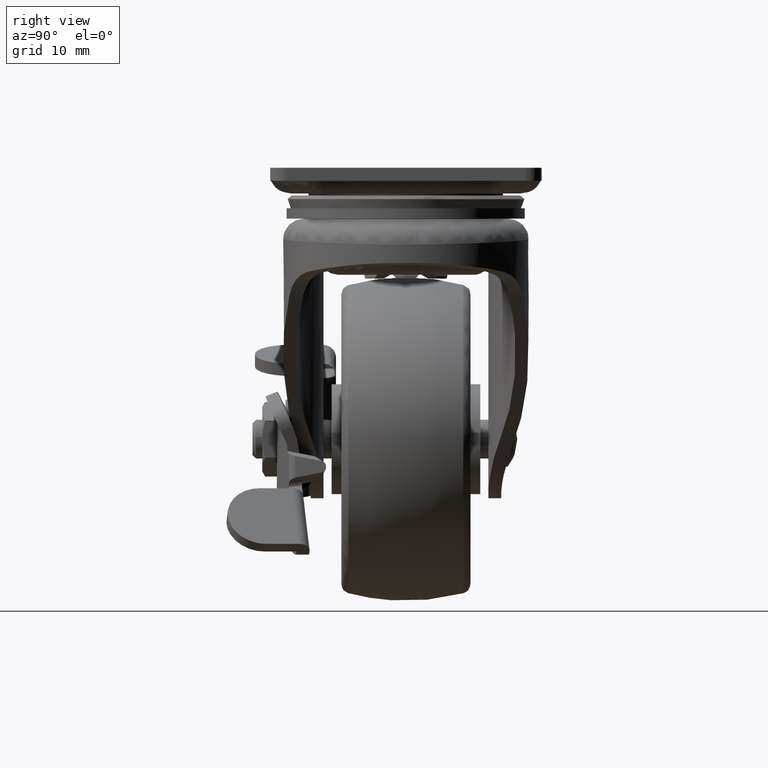
[diagram: clean part render]
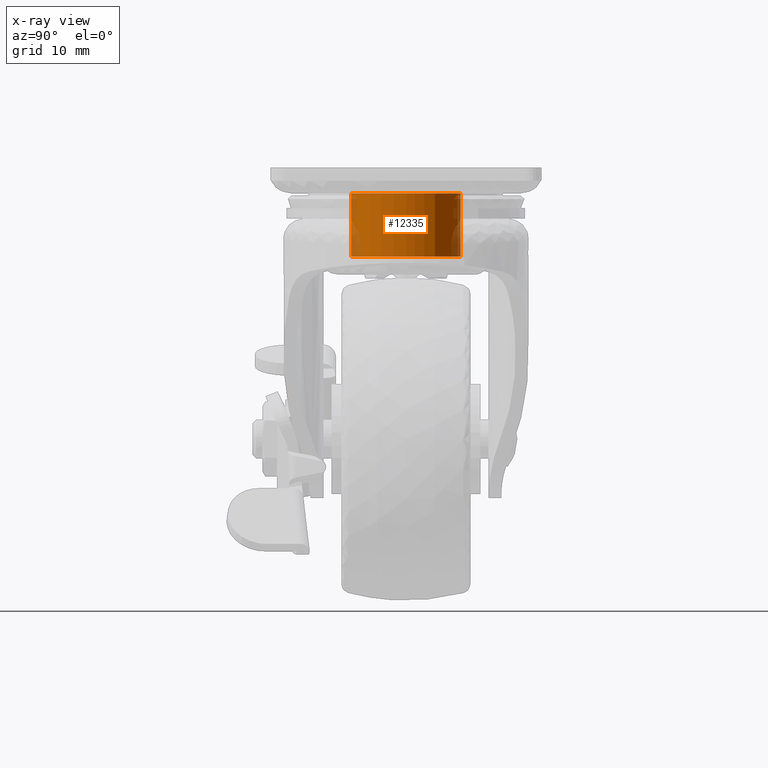
[diagram: x-ray — body ghosted, one internal face saturated and labeled with its STEP entity id]
A machine part, right view, then the same camera in x-ray: the body is ghosted and one INTERNAL B-rep face — a face not visible from any outside direction — is saturated and labeled: STEP entity #12335.
In plain terms, the highlighted face is a freeform B-spline surface patch.
Its self-contained STEP definition (entity closure, byte-faithful):
#12233=CARTESIAN_POINT('',(-1.003342693577227,8.441015912263719,-3.738265700000000));
#12234=CARTESIAN_POINT('',(-0.761764444673954,8.469731149088721,-3.738265699999999));
#12235=CARTESIAN_POINT('',(-0.518939325306601,8.484582969627583,-3.738265699999999));
#12236=CARTESIAN_POINT('',(7.965643644320975,9.003522294934184,-3.738265700000000));
#12237=CARTESIAN_POINT('',(8.484582969627576,0.518939325306608,-3.738265699999999));
#12238=CARTESIAN_POINT('',(9.003522294934177,-7.965643644320967,-3.738265700000000));
#12239=CARTESIAN_POINT('',(0.518939325306601,-8.484582969627569,-3.738265699999999));
#12240=CARTESIAN_POINT('',(-1.003342693577227,8.441015912263719,-14.041211357500003));
#12241=CARTESIAN_POINT('',(-0.761764444673954,8.469731149088721,-14.041211357500007));
#12242=CARTESIAN_POINT('',(-0.518939325306601,8.484582969627583,-14.041211357500000));
#12243=CARTESIAN_POINT('',(7.965643644320975,9.003522294934184,-14.041211357500003));
#12244=CARTESIAN_POINT('',(8.484582969627576,0.518939325306608,-14.041211357500000));
#12245=CARTESIAN_POINT('',(9.003522294934177,-7.965643644320967,-14.041211357500003));
#12246=CARTESIAN_POINT('',(0.518939325306601,-8.484582969627569,-14.041211357500000));
#12254=(BOUNDED_SURFACE()B_SPLINE_SURFACE(2,1,((#12233,#12240),(#12234,#12241),(#12235,#12242),(#12236,#12243),(#12237,#12244),(#12238,#12245),(#12239,#12246)),.UNSPECIFIED.,.F.,.F.,.U.)B_SPLINE_SURFACE_WITH_KNOTS((3,2,2,3),(2,2),(0.0,0.563359472913861,14.647346295760370,28.731333118606880),(0.0,10.302945657500009),.UNSPECIFIED.)GEOMETRIC_REPRESENTATION_ITEM()RATIONAL_B_SPLINE_SURFACE(((0.977505800795127,0.977505800795127),(0.988284271247462,0.988284271247462),(1.0,1.0),(0.707106781186548,0.707106781186548),(1.0,1.0),(0.707106781186548,0.707106781186548),(1.0,1.0)))REPRESENTATION_ITEM('')SURFACE());
#12255=CARTESIAN_POINT('',(-1.003342693649854,8.441015912255086,-13.789920000000000));
#12256=VERTEX_POINT('',#12255);
#12257=CARTESIAN_POINT('',(8.500438000000001,7.105427E-015,-13.789920000000000));
#12258=VERTEX_POINT('',#12257);
#12259=CARTESIAN_POINT('',(-1.003342693649854,8.441015912255086,-13.789920000000008));
#12260=CARTESIAN_POINT('',(-0.503430957279039,8.500438000000008,-13.789920000000004));
#12261=CARTESIAN_POINT('',(0.0,8.500438000000008,-13.789920000000000));
#12262=CARTESIAN_POINT('',(8.500438000000001,8.500438000000008,-13.789920000000000));
#12263=CARTESIAN_POINT('',(8.500438000000001,7.105427E-015,-13.789920000000000));
#12271=(BOUNDED_CURVE()B_SPLINE_CURVE(2,(#12259,#12260,#12261,#12262,#12263),.UNSPECIFIED.,.F.,.U.)B_SPLINE_CURVE_WITH_KNOTS((3,2,3),(0.229562473512736,0.250000000000000,0.500000000000000),.UNSPECIFIED.)CURVE()GEOMETRIC_REPRESENTATION_ITEM()RATIONAL_B_SPLINE_CURVE((0.956026754182186,0.976055948330240,1.0,0.707106781186548,1.0))REPRESENTATION_ITEM(''));
#12272=EDGE_CURVE('',#12256,#12258,#12271,.T.);
#12273=ORIENTED_EDGE('',*,*,#12272,.T.);
#12274=CARTESIAN_POINT('',(0.518939325394069,-8.484582969622220,-13.789920000000000));
#12275=VERTEX_POINT('',#12274);
#12276=CARTESIAN_POINT('',(8.500438000000001,7.105427E-015,-13.789920000000000));
#12277=CARTESIAN_POINT('',(8.500438000000001,-7.996413597790491,-13.789920000000000));
#12278=CARTESIAN_POINT('',(0.518939325394069,-8.484582969622220,-13.789919999999997));
#12286=(BOUNDED_CURVE()B_SPLINE_CURVE(2,(#12276,#12277,#12278),.UNSPECIFIED.,.F.,.U.)B_SPLINE_CURVE_WITH_KNOTS((3,3),(0.500000000000000,0.739332962238410),.UNSPECIFIED.)CURVE()GEOMETRIC_REPRESENTATION_ITEM()RATIONAL_B_SPLINE_CURVE((1.0,0.719603993287335,0.976072041665575))REPRESENTATION_ITEM(''));
#12287=EDGE_CURVE('',#12258,#12275,#12286,.T.);
#12288=ORIENTED_EDGE('',*,*,#12287,.T.);
#12289=CARTESIAN_POINT('',(0.518939325394072,-8.484582969622220,-3.983428000000000));
#12290=VERTEX_POINT('',#12289);
#12291=CARTESIAN_POINT('',(0.518939325394072,-8.484582969622220,-3.983428000000000));
#12292=CARTESIAN_POINT('',(0.518939325394069,-8.484582969622220,-13.789920000000000));
#12293=QUASI_UNIFORM_CURVE('',1,(#12291,#12292),.UNSPECIFIED.,.F.,.U.);
#12294=EDGE_CURVE('',#12290,#12275,#12293,.T.);
#12295=ORIENTED_EDGE('',*,*,#12294,.F.);
#12296=CARTESIAN_POINT('',(8.500438000000001,7.105427E-015,-3.983428000000000));
#12297=VERTEX_POINT('',#12296);
#12298=CARTESIAN_POINT('',(8.500438000000001,7.105427E-015,-3.983428000000000));
#12299=CARTESIAN_POINT('',(8.500438000000001,-7.996413597790491,-3.983428000000000));
#12300=CARTESIAN_POINT('',(0.518939325394072,-8.484582969622220,-3.983428000000000));
#12308=(BOUNDED_CURVE()B_SPLINE_CURVE(2,(#12298,#12299,#12300),.UNSPECIFIED.,.F.,.U.)B_SPLINE_CURVE_WITH_KNOTS((3,3),(0.500000000000000,0.739332962238410),.UNSPECIFIED.)CURVE()GEOMETRIC_REPRESENTATION_ITEM()RATIONAL_B_SPLINE_CURVE((1.0,0.719603993287335,0.976072041665575))REPRESENTATION_ITEM(''));
#12309=EDGE_CURVE('',#12297,#12290,#12308,.T.);
#12310=ORIENTED_EDGE('',*,*,#12309,.F.);
#12311=CARTESIAN_POINT('',(-1.003342693649854,8.441015912255086,-3.983428000000000));
#12312=VERTEX_POINT('',#12311);
#12313=CARTESIAN_POINT('',(-1.003342693649854,8.441015912255086,-3.983428000000000));
#12314=CARTESIAN_POINT('',(-0.503430957279039,8.500438000000008,-3.983428000000000));
#12315=CARTESIAN_POINT('',(0.0,8.500438000000008,-3.983428000000000));
#12316=CARTESIAN_POINT('',(8.500438000000001,8.500438000000008,-3.983428000000000));
#12317=CARTESIAN_POINT('',(8.500438000000001,7.105427E-015,-3.983428000000000));
#12325=(BOUNDED_CURVE()B_SPLINE_CURVE(2,(#12313,#12314,#12315,#12316,#12317),.UNSPECIFIED.,.F.,.U.)B_SPLINE_CURVE_WITH_KNOTS((3,2,3),(0.229562473512736,0.250000000000000,0.500000000000000),.UNSPECIFIED.)CURVE()GEOMETRIC_REPRESENTATION_ITEM()RATIONAL_B_SPLINE_CURVE((0.956026754182186,0.976055948330240,1.0,0.707106781186548,1.0))REPRESENTATION_ITEM(''));
#12326=EDGE_CURVE('',#12312,#12297,#12325,.T.);
#12327=ORIENTED_EDGE('',*,*,#12326,.F.);
#12328=CARTESIAN_POINT('',(-1.003342693649854,8.441015912255086,-3.983428000000000));
#12329=CARTESIAN_POINT('',(-1.003342693649854,8.441015912255086,-13.789920000000000));
#12330=QUASI_UNIFORM_CURVE('',1,(#12328,#12329),.UNSPECIFIED.,.F.,.U.);
#12331=EDGE_CURVE('',#12312,#12256,#12330,.T.);
#12332=ORIENTED_EDGE('',*,*,#12331,.T.);
#12333=EDGE_LOOP('',(#12273,#12288,#12295,#12310,#12327,#12332));
#12334=FACE_OUTER_BOUND('',#12333,.T.);
#12335=ADVANCED_FACE('',(#12334),#12254,.F.);